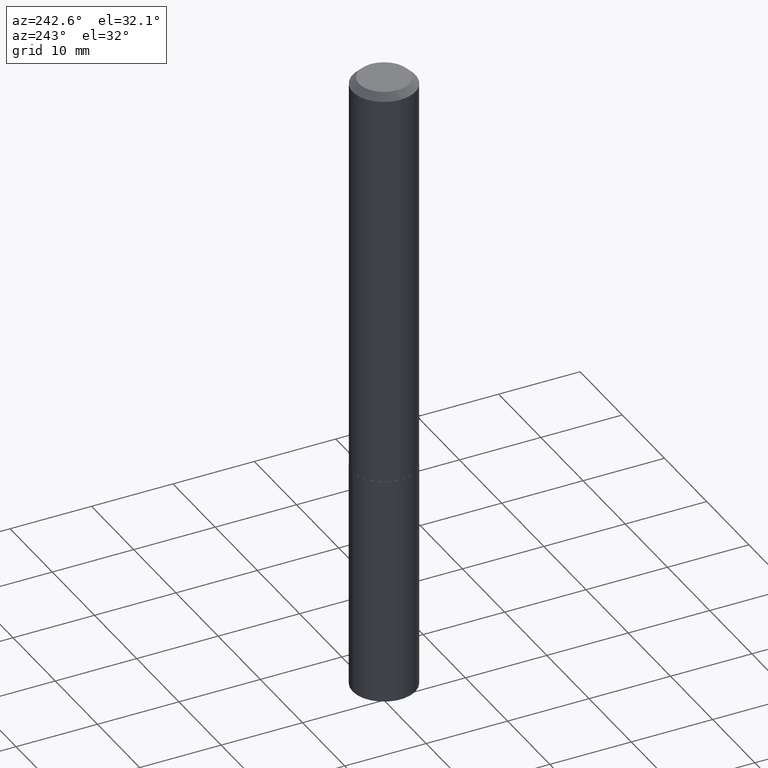
[diagram: clean part render]
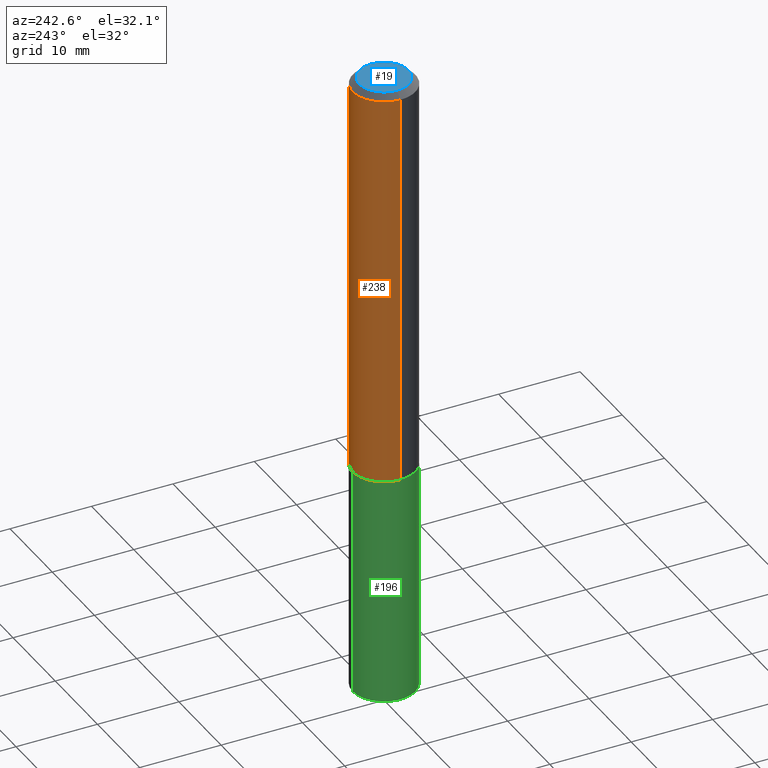
[diagram: same view with three faces highlighted in distinct colors, each labeled with its STEP entity id]
A machine part, auxiliary view with three faces highlighted in distinct colors.
Their STEP definitions:

[orange] entity #238 — the highlighted cylindrical surface (edge-blend (fillet) strip) has radius 3.8494 mm, axis along (-0, 0, 1).
#10 = DIRECTION ( 'NONE',  ( -2.445468806185136877E-29, 3.491481338843145188E-15, 1.000000000000000000 ) ) ;
#11 = CARTESIAN_POINT ( 'NONE',  ( 0.1515500000000001013, -1.058267993803354512E-15, 7.389845903718745173E-30 ) ) ;
#13 = LINE ( 'NONE', #11, #345 ) ;
#25 = DIRECTION ( 'NONE',  ( -2.445468806185136597E-29, 3.491481338843145583E-15, 1.000000000000000000 ) ) ;
#35 = AXIS2_PLACEMENT_3D ( 'NONE', #157, #68, #343 ) ;
#45 = VERTEX_POINT ( 'NONE', #117 ) ;
#63 = CARTESIAN_POINT ( 'NONE',  ( 0.1515500000000002123, -7.887954640714432536E-15, -1.956099999999999950 ) ) ;
#66 = FACE_OUTER_BOUND ( 'NONE', #140, .T. ) ;
#68 = DIRECTION ( 'NONE',  ( -2.445468806185136597E-29, 3.491481338843145583E-15, 1.000000000000000000 ) ) ;
#79 = ORIENTED_EDGE ( 'NONE', *, *, #322, .F. ) ;
#111 = DIRECTION ( 'NONE',  ( 1.000000000000000000, -6.982962677686271444E-15, 0.000000000000000000 ) ) ;
#113 = CARTESIAN_POINT ( 'NONE',  ( -0.1515500000000001013, 1.076827516044432551E-15, -7.454646129281315317E-30 ) ) ;
#114 = CIRCLE ( 'NONE', #243, 0.1515500000000002123 ) ;
#117 = CARTESIAN_POINT ( 'NONE',  ( -0.1515499999999999903, -2.392570203330529433E-15, -0.03125000000000021511 ) ) ;
#135 = EDGE_CURVE ( 'NONE', #195, #45, #209, .T. ) ;
#140 = EDGE_LOOP ( 'NONE', ( #242, #219, #79, #185 ) ) ;
#143 = EDGE_CURVE ( 'NONE', #254, #195, #114, .T. ) ;
#148 = CARTESIAN_POINT ( 'NONE',  ( -0.1515500000000002123, -5.752859130866642909E-15, -1.956099999999999950 ) ) ;
#157 = CARTESIAN_POINT ( 'NONE',  ( 7.642090019328604414E-31, -1.091087918388490513E-16, -0.03125000000000021511 ) ) ;
#185 = ORIENTED_EDGE ( 'NONE', *, *, #373, .F. ) ;
#195 = VERTEX_POINT ( 'NONE', #148 ) ;
#209 = LINE ( 'NONE', #113, #356 ) ;
#214 = CARTESIAN_POINT ( 'NONE',  ( 0.1515499999999999903, -1.167376785642202627E-15, -0.03125000000000021511 ) ) ;
#219 = ORIENTED_EDGE ( 'NONE', *, *, #135, .T. ) ;
#238 = ADVANCED_FACE ( 'NONE', ( #66 ), #277, .T. ) ;
#242 = ORIENTED_EDGE ( 'NONE', *, *, #143, .T. ) ;
#243 = AXIS2_PLACEMENT_3D ( 'NONE', #263, #25, #111 ) ;
#244 = CARTESIAN_POINT ( 'NONE',  ( 0.000000000000000000, 0.000000000000000000, 0.000000000000000000 ) ) ;
#254 = VERTEX_POINT ( 'NONE', #63 ) ;
#263 = CARTESIAN_POINT ( 'NONE',  ( 4.783581531778745627E-29, -6.829686646911076052E-15, -1.956099999999999950 ) ) ;
#277 = CYLINDRICAL_SURFACE ( 'NONE', #380, 0.1515500000000001013 ) ;
#301 = CIRCLE ( 'NONE', #35, 0.1515499999999999903 ) ;
#305 = DIRECTION ( 'NONE',  ( -2.445468806185136597E-29, 3.491481338843145583E-15, 1.000000000000000000 ) ) ;
#315 = DIRECTION ( 'NONE',  ( 1.000000000000000000, -6.982962677686267499E-15, 4.876176775795935232E-29 ) ) ;
#322 = EDGE_CURVE ( 'NONE', #347, #45, #301, .T. ) ;
#343 = DIRECTION ( 'NONE',  ( 1.000000000000000000, -6.982962677686267499E-15, 0.000000000000000000 ) ) ;
#345 = VECTOR ( 'NONE', #10, 39.37007874015748143 ) ;
#347 = VERTEX_POINT ( 'NONE', #214 ) ;
#355 = DIRECTION ( 'NONE',  ( -2.445468806185136877E-29, 3.491481338843145188E-15, 1.000000000000000000 ) ) ;
#356 = VECTOR ( 'NONE', #355, 39.37007874015748143 ) ;
#373 = EDGE_CURVE ( 'NONE', #254, #347, #13, .T. ) ;
#380 = AXIS2_PLACEMENT_3D ( 'NONE', #244, #305, #315 ) ;

[blue] entity #19 — the highlighted planar face has unit normal (0, -0, -1).
#9 = CARTESIAN_POINT ( 'NONE',  ( -5.839929314523151101E-48, 8.337871319499049968E-34, 2.388061258337324511E-19 ) ) ;
#14 = CIRCLE ( 'NONE', #273, 0.1202999999999999764 ) ;
#19 = ADVANCED_FACE ( 'NONE', ( #351 ), #81, .F. ) ;
#28 = DIRECTION ( 'NONE',  ( 1.000000000000000000, -6.982962677686266711E-15, 4.876187634201755611E-29 ) ) ;
#53 = DIRECTION ( 'NONE',  ( 2.438088387897960049E-29, -3.491481338843145188E-15, -1.000000000000000000 ) ) ;
#81 = PLANE ( 'NONE',  #155 ) ;
#86 = CARTESIAN_POINT ( 'NONE',  ( 0.1202999999999999764, -9.870675862665198561E-16, 2.388061258401206644E-19 ) ) ;
#103 = VERTEX_POINT ( 'NONE', #86 ) ;
#122 = CIRCLE ( 'NONE', #387, 0.1202999999999999764 ) ;
#137 = ORIENTED_EDGE ( 'NONE', *, *, #290, .T. ) ;
#155 = AXIS2_PLACEMENT_3D ( 'NONE', #202, #53, #358 ) ;
#202 = CARTESIAN_POINT ( 'NONE',  ( -2.919964657261575550E-48, 4.168935659749524984E-34, 1.194030629168662255E-19 ) ) ;
#239 = DIRECTION ( 'NONE',  ( -2.445468806185136597E-29, 3.491481338843145583E-15, 1.000000000000000000 ) ) ;
#265 = EDGE_CURVE ( 'NONE', #316, #103, #14, .T. ) ;
#273 = AXIS2_PLACEMENT_3D ( 'NONE', #308, #239, #279 ) ;
#279 = DIRECTION ( 'NONE',  ( 1.000000000000000000, -6.982962677686266711E-15, 4.876187634201755611E-29 ) ) ;
#290 = EDGE_CURVE ( 'NONE', #103, #316, #122, .T. ) ;
#308 = CARTESIAN_POINT ( 'NONE',  ( -5.839929314523151101E-48, 8.337871319499049968E-34, 2.388061258337324511E-19 ) ) ;
#310 = CARTESIAN_POINT ( 'NONE',  ( -0.1202999999999999764, 8.946048060450810583E-16, 2.388061258276670717E-19 ) ) ;
#316 = VERTEX_POINT ( 'NONE', #310 ) ;
#351 = FACE_OUTER_BOUND ( 'NONE', #378, .T. ) ;
#358 = DIRECTION ( 'NONE',  ( -1.000000000000000000, 6.982962677686265922E-15, -4.876176775795935793E-29 ) ) ;
#363 = DIRECTION ( 'NONE',  ( -2.445468806185136597E-29, 3.491481338843145583E-15, 1.000000000000000000 ) ) ;
#374 = ORIENTED_EDGE ( 'NONE', *, *, #265, .T. ) ;
#378 = EDGE_LOOP ( 'NONE', ( #374, #137 ) ) ;
#387 = AXIS2_PLACEMENT_3D ( 'NONE', #9, #363, #28 ) ;

[green] entity #196 — the highlighted cylindrical surface (edge-blend (fillet) strip) has radius 3.8494 mm, axis along (-0, 0, 1).
#7 = CARTESIAN_POINT ( 'NONE',  ( 1.076827516044506507E-15, 0.1515499999999892211, -3.069592299887064168 ) ) ;
#16 = CARTESIAN_POINT ( 'NONE',  ( 1.076827516044506902E-15, 0.1515499999999931624, -1.956600000000000339 ) ) ;
#18 = LINE ( 'NONE', #269, #386 ) ;
#21 = VECTOR ( 'NONE', #144, 39.37007874015748143 ) ;
#31 = VERTEX_POINT ( 'NONE', #16 ) ;
#33 = EDGE_CURVE ( 'NONE', #228, #31, #385, .T. ) ;
#40 = ORIENTED_EDGE ( 'NONE', *, *, #156, .T. ) ;
#43 = AXIS2_PLACEMENT_3D ( 'NONE', #389, #233, #116 ) ;
#46 = ORIENTED_EDGE ( 'NONE', *, *, #47, .T. ) ;
#47 = EDGE_CURVE ( 'NONE', #228, #95, #69, .T. ) ;
#54 = CARTESIAN_POINT ( 'NONE',  ( 1.076827516044479489E-15, 0.1515499999999931624, -1.956600000000000339 ) ) ;
#56 = DIRECTION ( 'NONE',  ( -2.445415479178305639E-29, 3.491557706152111532E-15, 1.000000000000000000 ) ) ;
#69 = CIRCLE ( 'NONE', #43, 0.1515499999999999625 ) ;
#95 = VERTEX_POINT ( 'NONE', #115 ) ;
#115 = CARTESIAN_POINT ( 'NONE',  ( -1.058267993803278190E-15, -0.1515500000000106762, -3.069592299887063280 ) ) ;
#116 = DIRECTION ( 'NONE',  ( -6.982962677686265922E-15, -1.000000000000000000, 3.605210153301569095E-15 ) ) ;
#121 = DIRECTION ( 'NONE',  ( -6.982962677686265922E-15, -1.000000000000000000, 3.605210153301568306E-15 ) ) ;
#133 = CARTESIAN_POINT ( 'NONE',  ( -1.058267993803305800E-15, -0.1515500000000068181, -1.956599999999999229 ) ) ;
#144 = DIRECTION ( 'NONE',  ( -2.445415479178305639E-29, 3.491557706152111532E-15, 1.000000000000000000 ) ) ;
#156 = EDGE_CURVE ( 'NONE', #95, #198, #18, .T. ) ;
#158 = CARTESIAN_POINT ( 'NONE',  ( 4.784804266181837868E-29, -6.831432387580497556E-15, -1.956599999999999895 ) ) ;
#183 = ORIENTED_EDGE ( 'NONE', *, *, #207, .F. ) ;
#196 = ADVANCED_FACE ( 'NONE', ( #266 ), #328, .T. ) ;
#198 = VERTEX_POINT ( 'NONE', #133 ) ;
#207 = EDGE_CURVE ( 'NONE', #31, #198, #330, .T. ) ;
#223 = AXIS2_PLACEMENT_3D ( 'NONE', #158, #275, #241 ) ;
#228 = VERTEX_POINT ( 'NONE', #7 ) ;
#233 = DIRECTION ( 'NONE',  ( -2.445415479178305919E-29, 3.491557706152111532E-15, 1.000000000000000000 ) ) ;
#241 = DIRECTION ( 'NONE',  ( -6.982962677686265922E-15, -1.000000000000000000, 3.605210153301568306E-15 ) ) ;
#266 = FACE_OUTER_BOUND ( 'NONE', #309, .T. ) ;
#267 = AXIS2_PLACEMENT_3D ( 'NONE', #341, #307, #121 ) ;
#269 = CARTESIAN_POINT ( 'NONE',  ( -1.058267993803305800E-15, -0.1515500000000068181, -1.956599999999999229 ) ) ;
#275 = DIRECTION ( 'NONE',  ( -2.445415479178305919E-29, 3.491557706152111532E-15, 1.000000000000000000 ) ) ;
#291 = ORIENTED_EDGE ( 'NONE', *, *, #33, .F. ) ;
#307 = DIRECTION ( 'NONE',  ( -2.445415479178305919E-29, 3.491557706152111532E-15, 1.000000000000000000 ) ) ;
#309 = EDGE_LOOP ( 'NONE', ( #291, #46, #40, #183 ) ) ;
#328 = CYLINDRICAL_SURFACE ( 'NONE', #267, 0.1515499999999999903 ) ;
#330 = CIRCLE ( 'NONE', #223, 0.1515499999999999903 ) ;
#341 = CARTESIAN_POINT ( 'NONE',  ( 4.784804266181837868E-29, -6.831432387580497556E-15, -1.956599999999999895 ) ) ;
#385 = LINE ( 'NONE', #54, #21 ) ;
#386 = VECTOR ( 'NONE', #56, 39.37007874015748143 ) ;
#389 = CARTESIAN_POINT ( 'NONE',  ( 7.506532864531928318E-29, -1.071750922913913919E-14, -3.069592299887063724 ) ) ;